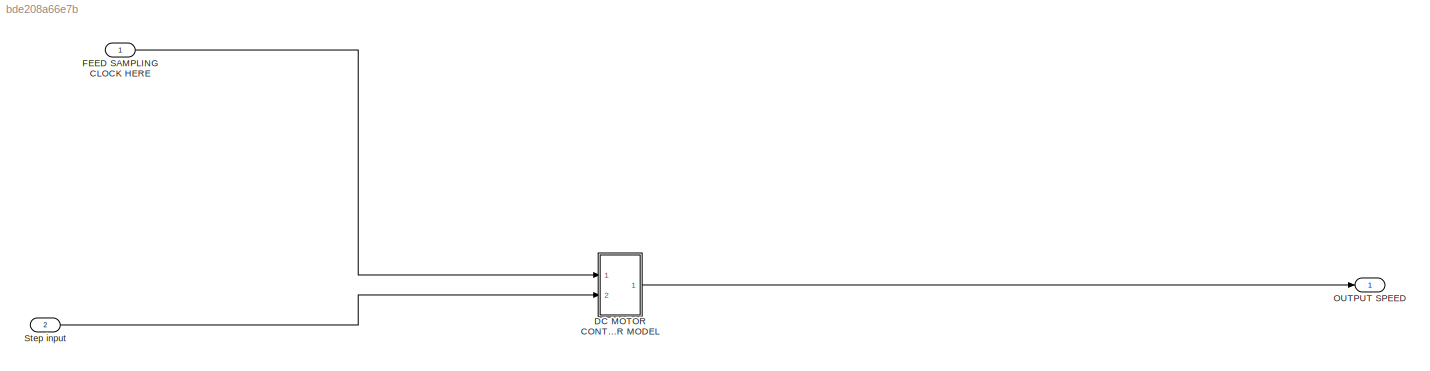
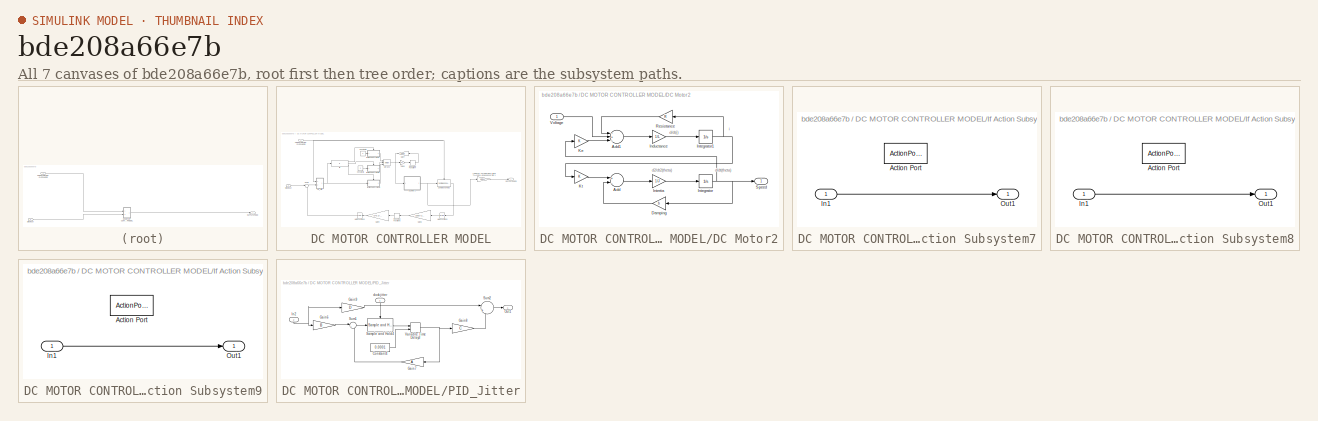
[diagram: thumbnail index - all 7 canvases of the model, root first then tree order]
MODEL slx_bde208a66e7b
KIND library
CONFIG AbsTol = auto
CONFIG EnableMultiTasking = on
CONFIG FixedStep = auto
CONFIG MaxStep = auto
CONFIG MinStep = auto
CONFIG RelTol = 1e-3
CONFIG SampleTimeConstraint = Unconstrained
CONFIG Solver = VariableStepAuto
CONFIG SolverName = VariableStepAuto
CONFIG StartTime = 0.0
CONFIG StopTime = 10.0
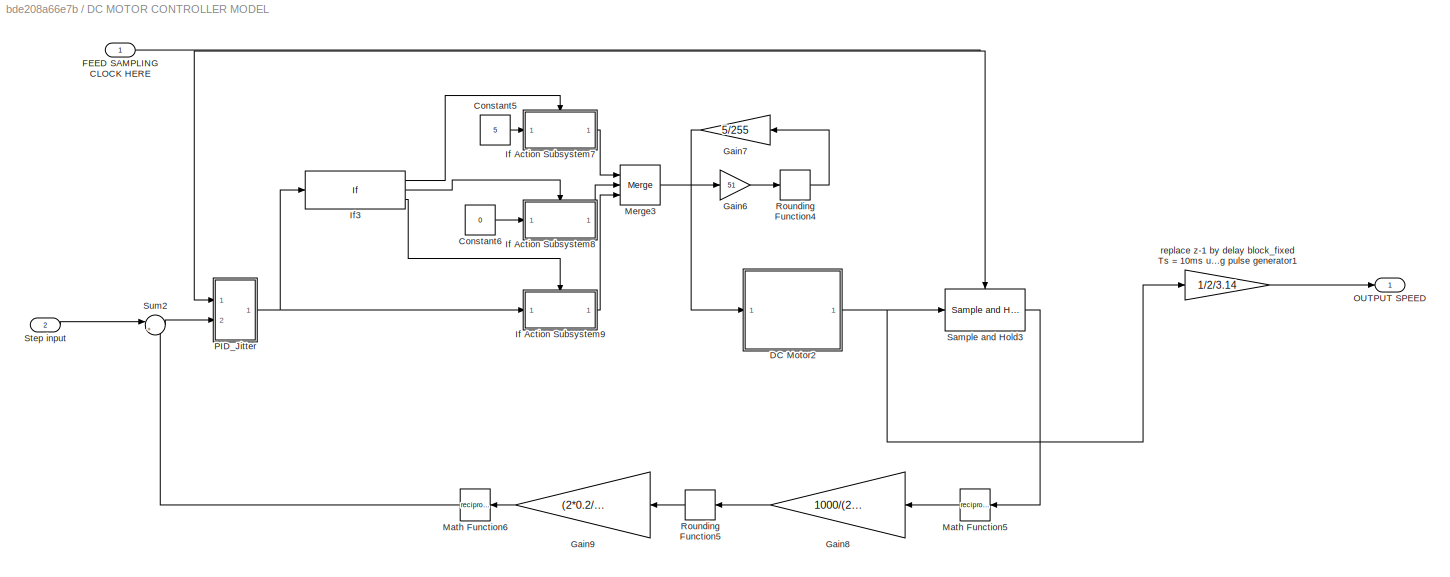
BLOCK [SubSystem] DC MOTOR CONTROLLER MODEL
  Ports = [2, 1]
  RequestExecContextInheritance = off
  Variant = off
BLOCK [Constant] DC MOTOR CONTROLLER MODEL/Constant5
  Value = 5
BLOCK [Constant] DC MOTOR CONTROLLER MODEL/Constant6
  Value = 0
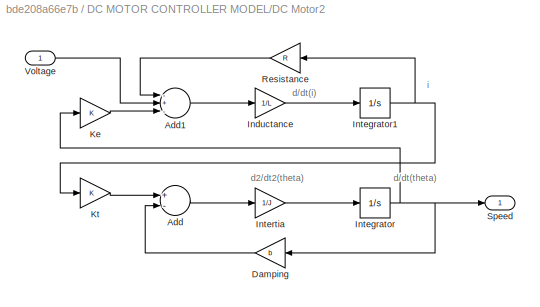
BLOCK [SubSystem] DC MOTOR CONTROLLER MODEL/DC Motor2
  Ports = [1, 1]
  RequestExecContextInheritance = off
  Variant = off
BLOCK [Outport] DC MOTOR CONTROLLER MODEL/DC Motor2/ Speed
  IconDisplay = Port number
BLOCK [Sum] DC MOTOR CONTROLLER MODEL/DC Motor2/Add
  InputSameDT = off
  Inputs = +-
  OutDataTypeStr = Inherit: Inherit via internal rule
  Ports = [2, 1]
  SaturateOnIntegerOverflow = off
BLOCK [Sum] DC MOTOR CONTROLLER MODEL/DC Motor2/Add1
  InputSameDT = off
  Inputs = -+-
  OutDataTypeStr = Inherit: Inherit via internal rule
  Ports = [3, 1]
  SaturateOnIntegerOverflow = off
BLOCK [Gain] DC MOTOR CONTROLLER MODEL/DC Motor2/Damping
  Gain = b
  OutDataTypeStr = Inherit: Inherit via internal rule
  ParamDataTypeStr = Inherit: Inherit via internal rule
  SaturateOnIntegerOverflow = off
BLOCK [Gain] DC MOTOR CONTROLLER MODEL/DC Motor2/Inductance
  Gain = 1/L
  OutDataTypeStr = Inherit: Inherit via internal rule
  ParamDataTypeStr = Inherit: Inherit via internal rule
  SaturateOnIntegerOverflow = off
BLOCK [Integrator] DC MOTOR CONTROLLER MODEL/DC Motor2/Integrator
  Ports = [1, 1]
BLOCK [Integrator] DC MOTOR CONTROLLER MODEL/DC Motor2/Integrator1
  Ports = [1, 1]
BLOCK [Gain] DC MOTOR CONTROLLER MODEL/DC Motor2/Intertia
  Gain = 1/J
  OutDataTypeStr = Inherit: Inherit via internal rule
  ParamDataTypeStr = Inherit: Inherit via internal rule
  SaturateOnIntegerOverflow = off
BLOCK [Gain] DC MOTOR CONTROLLER MODEL/DC Motor2/Ke
  Gain = K
  OutDataTypeStr = Inherit: Inherit via internal rule
  ParamDataTypeStr = Inherit: Inherit via internal rule
  SaturateOnIntegerOverflow = off
BLOCK [Gain] DC MOTOR CONTROLLER MODEL/DC Motor2/Kt
  Gain = K
  OutDataTypeStr = Inherit: Inherit via internal rule
  ParamDataTypeStr = Inherit: Inherit via internal rule
  SaturateOnIntegerOverflow = off
BLOCK [Gain] DC MOTOR CONTROLLER MODEL/DC Motor2/Resistance
  Gain = R
  OutDataTypeStr = Inherit: Inherit via internal rule
  ParamDataTypeStr = Inherit: Inherit via internal rule
  SaturateOnIntegerOverflow = off
BLOCK [Inport] DC MOTOR CONTROLLER MODEL/DC Motor2/Voltage
  IconDisplay = Port number
BLOCK [Inport] DC MOTOR CONTROLLER MODEL/FEED SAMPLING CLOCK HERE
  IconDisplay = Port number
BLOCK [Gain] DC MOTOR CONTROLLER MODEL/Gain6
  Gain = 51
  OutDataTypeStr = Inherit: Inherit via internal rule
  ParamDataTypeStr = Inherit: Inherit via internal rule
  SaturateOnIntegerOverflow = off
BLOCK [Gain] DC MOTOR CONTROLLER MODEL/Gain7
  Gain = 5/255
  OutDataTypeStr = Inherit: Inherit via internal rule
  ParamDataTypeStr = Inherit: Inherit via internal rule
  SaturateOnIntegerOverflow = off
BLOCK [Gain] DC MOTOR CONTROLLER MODEL/Gain8
  Gain = 1000/(2*0.2/(2*3.14))
  OutDataTypeStr = Inherit: Inherit via internal rule
  ParamDataTypeStr = Inherit: Inherit via internal rule
  SaturateOnIntegerOverflow = off
BLOCK [Gain] DC MOTOR CONTROLLER MODEL/Gain9
  Gain = (2*0.2/(2*3.14))/1000
  OutDataTypeStr = Inherit: Inherit via internal rule
  ParamDataTypeStr = Inherit: Inherit via internal rule
  SaturateOnIntegerOverflow = off
BLOCK [SubSystem] DC MOTOR CONTROLLER MODEL/If Action Subsystem7
  Ports = [1, 1, 0, 0, 0, 0, 0, 1]
  RequestExecContextInheritance = off
  TreatAsAtomicUnit = on
  Variant = off
BLOCK [ActionPort] DC MOTOR CONTROLLER MODEL/If Action Subsystem7/Action Port
BLOCK [Inport] DC MOTOR CONTROLLER MODEL/If Action Subsystem7/In1
  IconDisplay = Port number
BLOCK [Outport] DC MOTOR CONTROLLER MODEL/If Action Subsystem7/Out1
  IconDisplay = Port number
BLOCK [SubSystem] DC MOTOR CONTROLLER MODEL/If Action Subsystem8
  Ports = [1, 1, 0, 0, 0, 0, 0, 1]
  RequestExecContextInheritance = off
  TreatAsAtomicUnit = on
  Variant = off
BLOCK [ActionPort] DC MOTOR CONTROLLER MODEL/If Action Subsystem8/Action Port
BLOCK [Inport] DC MOTOR CONTROLLER MODEL/If Action Subsystem8/In1
  IconDisplay = Port number
BLOCK [Outport] DC MOTOR CONTROLLER MODEL/If Action Subsystem8/Out1
  IconDisplay = Port number
BLOCK [SubSystem] DC MOTOR CONTROLLER MODEL/If Action Subsystem9
  Ports = [1, 1, 0, 0, 0, 0, 0, 1]
  RequestExecContextInheritance = off
  TreatAsAtomicUnit = on
  Variant = off
BLOCK [ActionPort] DC MOTOR CONTROLLER MODEL/If Action Subsystem9/Action Port
BLOCK [Inport] DC MOTOR CONTROLLER MODEL/If Action Subsystem9/In1
  IconDisplay = Port number
BLOCK [Outport] DC MOTOR CONTROLLER MODEL/If Action Subsystem9/Out1
  IconDisplay = Port number
BLOCK [If] DC MOTOR CONTROLLER MODEL/If3
  ElseIfExpressions = u1<0
  IfExpression = u1 > 5
  Ports = [1, 3]
BLOCK [Math] DC MOTOR CONTROLLER MODEL/Math Function5
  Operator = reciprocal
  Ports = [1, 1]
BLOCK [Math] DC MOTOR CONTROLLER MODEL/Math Function6
  Operator = reciprocal
  Ports = [1, 1]
BLOCK [Merge] DC MOTOR CONTROLLER MODEL/Merge3
  Inputs = 3
  Ports = [3, 1]
BLOCK [Outport] DC MOTOR CONTROLLER MODEL/OUTPUT SPEED
  IconDisplay = Port number
BLOCK [SubSystem] DC MOTOR CONTROLLER MODEL/PID_Jitter
  Ports = [2, 1]
  RequestExecContextInheritance = off
  Variant = off
BLOCK [Constant] DC MOTOR CONTROLLER MODEL/PID_Jitter/Constant4
  SampleTime = 0.01
  Value = 0.0001
BLOCK [Gain] DC MOTOR CONTROLLER MODEL/PID_Jitter/Gain6
  Gain = B
  OutDataTypeStr = Inherit: Inherit via internal rule
  ParamDataTypeStr = Inherit: Inherit via internal rule
  SaturateOnIntegerOverflow = off
BLOCK [Gain] DC MOTOR CONTROLLER MODEL/PID_Jitter/Gain7
  Gain = A
  OutDataTypeStr = Inherit: Inherit via internal rule
  ParamDataTypeStr = Inherit: Inherit via internal rule
  SaturateOnIntegerOverflow = off
BLOCK [Gain] DC MOTOR CONTROLLER MODEL/PID_Jitter/Gain8
  Gain = C
  OutDataTypeStr = Inherit: Inherit via internal rule
  ParamDataTypeStr = Inherit: Inherit via internal rule
  SaturateOnIntegerOverflow = off
BLOCK [Gain] DC MOTOR CONTROLLER MODEL/PID_Jitter/Gain9
  Gain = D
  OutDataTypeStr = Inherit: Inherit via internal rule
  ParamDataTypeStr = Inherit: Inherit via internal rule
  SaturateOnIntegerOverflow = off
BLOCK [Inport] DC MOTOR CONTROLLER MODEL/PID_Jitter/In2
  IconDisplay = Port number
  Port = 2
BLOCK [Outport] DC MOTOR CONTROLLER MODEL/PID_Jitter/Out1
  IconDisplay = Port number
BLOCK [Reference] DC MOTOR CONTROLLER MODEL/PID_Jitter/Sample and Hold4  REF=dspsigops/Sample
and Hold
  Ports = [1, 1, 0, 1]
  SourceBlock = dspsigops/Sample\nand Hold
  SourceProductBaseCode = DS
  SourceProductName = DSP System Toolbox
  SourceType = Sample and Hold
BLOCK [Sum] DC MOTOR CONTROLLER MODEL/PID_Jitter/Sum1
  IconShape = round
  InputSameDT = off
  Inputs = |++
  OutDataTypeStr = Inherit: Inherit via internal rule
  Ports = [2, 1]
  SaturateOnIntegerOverflow = off
BLOCK [Sum] DC MOTOR CONTROLLER MODEL/PID_Jitter/Sum2
  IconShape = round
  InputSameDT = off
  Inputs = |++
  OutDataTypeStr = Inherit: Inherit via internal rule
  Ports = [2, 1]
  SaturateOnIntegerOverflow = off
BLOCK [VariableTransportDelay] DC MOTOR CONTROLLER MODEL/PID_Jitter/Variable Time Delay3
  MaximumDelay = 10
  Ports = [2, 1]
  VariableDelayType = Variable transport delay
BLOCK [Inport] DC MOTOR CONTROLLER MODEL/PID_Jitter/clock jitter
  IconDisplay = Port number
BLOCK [Rounding] DC MOTOR CONTROLLER MODEL/Rounding Function4
  Operator = round
BLOCK [Rounding] DC MOTOR CONTROLLER MODEL/Rounding Function5
  Operator = round
BLOCK [Reference] DC MOTOR CONTROLLER MODEL/Sample and Hold3  REF=dspsigops/Sample
and Hold
  Ports = [1, 1, 0, 1]
  SourceBlock = dspsigops/Sample\nand Hold
  SourceProductBaseCode = DS
  SourceProductName = DSP System Toolbox
  SourceType = Sample and Hold
BLOCK [Inport] DC MOTOR CONTROLLER MODEL/Step input
  IconDisplay = Port number
  Port = 2
BLOCK [Sum] DC MOTOR CONTROLLER MODEL/Sum2
  IconShape = round
  InputSameDT = off
  Inputs = |+-
  OutDataTypeStr = Inherit: Inherit via internal rule
  Ports = [2, 1]
  SaturateOnIntegerOverflow = off
BLOCK [Gain] DC MOTOR CONTROLLER MODEL/replace z-1 by delay block_fixed Ts = 10ms using pulse generator1
  Gain = 1/2/3.14
  OutDataTypeStr = Inherit: Inherit via internal rule
  ParamDataTypeStr = Inherit: Inherit via internal rule
  SaturateOnIntegerOverflow = off
BLOCK [Inport] FEED SAMPLING CLOCK HERE
  IconDisplay = Port number
BLOCK [Outport] OUTPUT SPEED
  IconDisplay = Port number
BLOCK [Inport] Step input
  IconDisplay = Port number
  Port = 2
ANNOTATION DC MOTOR CONTROLLER MODEL/DC Motor2: d/dt(i)
ANNOTATION DC MOTOR CONTROLLER MODEL/DC Motor2: d/dt(theta)
ANNOTATION DC MOTOR CONTROLLER MODEL/DC Motor2: d2/dt2(theta)
ANNOTATION DC MOTOR CONTROLLER MODEL/DC Motor2: i
LINE DC MOTOR CONTROLLER MODEL/Constant5:1 -> DC MOTOR CONTROLLER MODEL/If Action Subsystem7:1
LINE DC MOTOR CONTROLLER MODEL/Constant6:1 -> DC MOTOR CONTROLLER MODEL/If Action Subsystem8:1
LINE DC MOTOR CONTROLLER MODEL/DC Motor2/Add1:1 -> DC MOTOR CONTROLLER MODEL/DC Motor2/Inductance:1
LINE DC MOTOR CONTROLLER MODEL/DC Motor2/Add:1 -> DC MOTOR CONTROLLER MODEL/DC Motor2/Intertia:1
LINE DC MOTOR CONTROLLER MODEL/DC Motor2/Damping:1 -> DC MOTOR CONTROLLER MODEL/DC Motor2/Add:2
LINE DC MOTOR CONTROLLER MODEL/DC Motor2/Inductance:1 -> DC MOTOR CONTROLLER MODEL/DC Motor2/Integrator1:1
NET DC MOTOR CONTROLLER MODEL/DC Motor2/Integrator1:1 -> DC MOTOR CONTROLLER MODEL/DC Motor2/Kt:1, DC MOTOR CONTROLLER MODEL/DC Motor2/Resistance:1
NET DC MOTOR CONTROLLER MODEL/DC Motor2/Integrator:1 -> DC MOTOR CONTROLLER MODEL/DC Motor2/ Speed:1, DC MOTOR CONTROLLER MODEL/DC Motor2/Damping:1, DC MOTOR CONTROLLER MODEL/DC Motor2/Ke:1
LINE DC MOTOR CONTROLLER MODEL/DC Motor2/Intertia:1 -> DC MOTOR CONTROLLER MODEL/DC Motor2/Integrator:1
LINE DC MOTOR CONTROLLER MODEL/DC Motor2/Ke:1 -> DC MOTOR CONTROLLER MODEL/DC Motor2/Add1:3
LINE DC MOTOR CONTROLLER MODEL/DC Motor2/Kt:1 -> DC MOTOR CONTROLLER MODEL/DC Motor2/Add:1
LINE DC MOTOR CONTROLLER MODEL/DC Motor2/Resistance:1 -> DC MOTOR CONTROLLER MODEL/DC Motor2/Add1:1
LINE DC MOTOR CONTROLLER MODEL/DC Motor2/Voltage:1 -> DC MOTOR CONTROLLER MODEL/DC Motor2/Add1:2
NET DC MOTOR CONTROLLER MODEL/DC Motor2:1 -> DC MOTOR CONTROLLER MODEL/Sample and Hold3:1, DC MOTOR CONTROLLER MODEL/replace z-1 by delay block_fixed Ts = 10ms using pulse generator1:1
NET DC MOTOR CONTROLLER MODEL/FEED SAMPLING CLOCK HERE:1 -> DC MOTOR CONTROLLER MODEL/PID_Jitter:1, DC MOTOR CONTROLLER MODEL/Sample and Hold3:trigger
LINE DC MOTOR CONTROLLER MODEL/Gain6:1 -> DC MOTOR CONTROLLER MODEL/Rounding Function4:1
LINE DC MOTOR CONTROLLER MODEL/Gain7:1 -> DC MOTOR CONTROLLER MODEL/DC Motor2:1
LINE DC MOTOR CONTROLLER MODEL/Gain8:1 -> DC MOTOR CONTROLLER MODEL/Rounding Function5:1
LINE DC MOTOR CONTROLLER MODEL/Gain9:1 -> DC MOTOR CONTROLLER MODEL/Math Function6:1
LINE DC MOTOR CONTROLLER MODEL/If Action Subsystem7/In1:1 -> DC MOTOR CONTROLLER MODEL/If Action Subsystem7/Out1:1
LINE DC MOTOR CONTROLLER MODEL/If Action Subsystem7:1 -> DC MOTOR CONTROLLER MODEL/Merge3:1
LINE DC MOTOR CONTROLLER MODEL/If Action Subsystem8/In1:1 -> DC MOTOR CONTROLLER MODEL/If Action Subsystem8/Out1:1
LINE DC MOTOR CONTROLLER MODEL/If Action Subsystem8:1 -> DC MOTOR CONTROLLER MODEL/Merge3:2
LINE DC MOTOR CONTROLLER MODEL/If Action Subsystem9/In1:1 -> DC MOTOR CONTROLLER MODEL/If Action Subsystem9/Out1:1
LINE DC MOTOR CONTROLLER MODEL/If Action Subsystem9:1 -> DC MOTOR CONTROLLER MODEL/Merge3:3
LINE DC MOTOR CONTROLLER MODEL/If3:1 -> DC MOTOR CONTROLLER MODEL/If Action Subsystem7:ifaction
LINE DC MOTOR CONTROLLER MODEL/If3:2 -> DC MOTOR CONTROLLER MODEL/If Action Subsystem8:ifaction
LINE DC MOTOR CONTROLLER MODEL/If3:3 -> DC MOTOR CONTROLLER MODEL/If Action Subsystem9:ifaction
LINE DC MOTOR CONTROLLER MODEL/Math Function5:1 -> DC MOTOR CONTROLLER MODEL/Gain8:1
LINE DC MOTOR CONTROLLER MODEL/Math Function6:1 -> DC MOTOR CONTROLLER MODEL/Sum2:2
LINE DC MOTOR CONTROLLER MODEL/Merge3:1 -> DC MOTOR CONTROLLER MODEL/Gain6:1
LINE DC MOTOR CONTROLLER MODEL/PID_Jitter/Constant4:1 -> DC MOTOR CONTROLLER MODEL/PID_Jitter/Variable Time Delay3:2
LINE DC MOTOR CONTROLLER MODEL/PID_Jitter/Gain6:1 -> DC MOTOR CONTROLLER MODEL/PID_Jitter/Sum1:1
LINE DC MOTOR CONTROLLER MODEL/PID_Jitter/Gain7:1 -> DC MOTOR CONTROLLER MODEL/PID_Jitter/Sum1:2
LINE DC MOTOR CONTROLLER MODEL/PID_Jitter/Gain8:1 -> DC MOTOR CONTROLLER MODEL/PID_Jitter/Sum2:2
LINE DC MOTOR CONTROLLER MODEL/PID_Jitter/Gain9:1 -> DC MOTOR CONTROLLER MODEL/PID_Jitter/Sum2:1
NET DC MOTOR CONTROLLER MODEL/PID_Jitter/In2:1 -> DC MOTOR CONTROLLER MODEL/PID_Jitter/Gain6:1, DC MOTOR CONTROLLER MODEL/PID_Jitter/Gain9:1
LINE DC MOTOR CONTROLLER MODEL/PID_Jitter/Sample and Hold4:1 -> DC MOTOR CONTROLLER MODEL/PID_Jitter/Variable Time Delay3:1
LINE DC MOTOR CONTROLLER MODEL/PID_Jitter/Sum1:1 -> DC MOTOR CONTROLLER MODEL/PID_Jitter/Sample and Hold4:1
LINE DC MOTOR CONTROLLER MODEL/PID_Jitter/Sum2:1 -> DC MOTOR CONTROLLER MODEL/PID_Jitter/Out1:1
NET DC MOTOR CONTROLLER MODEL/PID_Jitter/Variable Time Delay3:1 -> DC MOTOR CONTROLLER MODEL/PID_Jitter/Gain7:1, DC MOTOR CONTROLLER MODEL/PID_Jitter/Gain8:1
LINE DC MOTOR CONTROLLER MODEL/PID_Jitter/clock jitter:1 -> DC MOTOR CONTROLLER MODEL/PID_Jitter/Sample and Hold4:trigger
NET DC MOTOR CONTROLLER MODEL/PID_Jitter:1 -> DC MOTOR CONTROLLER MODEL/If Action Subsystem9:1, DC MOTOR CONTROLLER MODEL/If3:1
LINE DC MOTOR CONTROLLER MODEL/Rounding Function4:1 -> DC MOTOR CONTROLLER MODEL/Gain7:1
LINE DC MOTOR CONTROLLER MODEL/Rounding Function5:1 -> DC MOTOR CONTROLLER MODEL/Gain9:1
LINE DC MOTOR CONTROLLER MODEL/Sample and Hold3:1 -> DC MOTOR CONTROLLER MODEL/Math Function5:1
LINE DC MOTOR CONTROLLER MODEL/Step input:1 -> DC MOTOR CONTROLLER MODEL/Sum2:1
LINE DC MOTOR CONTROLLER MODEL/Sum2:1 -> DC MOTOR CONTROLLER MODEL/PID_Jitter:2
LINE DC MOTOR CONTROLLER MODEL/replace z-1 by delay block_fixed Ts = 10ms using pulse generator1:1 -> DC MOTOR CONTROLLER MODEL/OUTPUT SPEED:1
LINE DC MOTOR CONTROLLER MODEL:1 -> OUTPUT SPEED:1
LINE FEED SAMPLING CLOCK HERE:1 -> DC MOTOR CONTROLLER MODEL:1
LINE Step input:1 -> DC MOTOR CONTROLLER MODEL:2
note: NET lines group one-source signal fan-out (src -> all destinations, sorted); 1:1 wires keep LINE
